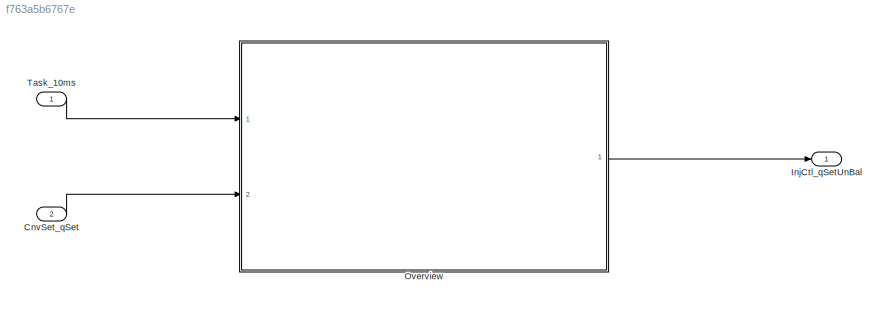
MODEL slx_f763a5b6767e
KIND model
CONFIG AbsTol = auto
CONFIG EnableMultiTasking = off
CONFIG FixedStep = auto
CONFIG MaxStep = auto
CONFIG MinStep = auto
CONFIG RelTol = 1e-3
CONFIG SampleTimeConstraint = Unconstrained
CONFIG Solver = VariableStepAuto
CONFIG SolverName = VariableStepAuto
CONFIG StartTime = 0.0
CONFIG StopTime = 10.0
BLOCK [Inport] CnvSet_qSet
  IconDisplay = Port number
  Port = 2
BLOCK [Outport] InjCtl_qSetUnBal
  IconDisplay = Port number
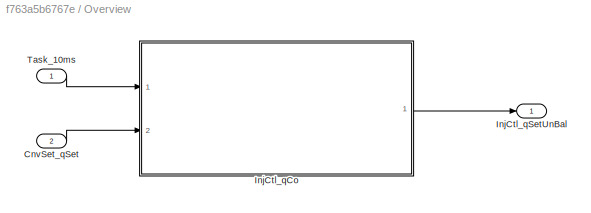
BLOCK [SubSystem] Overview
  Ports = [2, 1]
  RequestExecContextInheritance = off
BLOCK [Inport] Overview/CnvSet_qSet
  IconDisplay = Port number
  Port = 2
BLOCK [ModelReference] Overview/InjCtl_qCo
  ModelNameDialog = InjCtl_qCo
  ModelReferenceVersion = 1.60
  Ports = [2, 1]
BLOCK [Outport] Overview/InjCtl_qSetUnBal
  IconDisplay = Port number
BLOCK [Inport] Overview/Task_10ms
  IconDisplay = Port number
BLOCK [Inport] Task_10ms
  IconDisplay = Port number
  OutputFunctionCall = on
LINE CnvSet_qSet:1 -> Overview:2
LINE Overview/CnvSet_qSet:1 -> Overview/InjCtl_qCo:2
LINE Overview/InjCtl_qCo:1 -> Overview/InjCtl_qSetUnBal:1
LINE Overview/Task_10ms:1 -> Overview/InjCtl_qCo:1
LINE Overview:1 -> InjCtl_qSetUnBal:1
LINE Task_10ms:1 -> Overview:1
